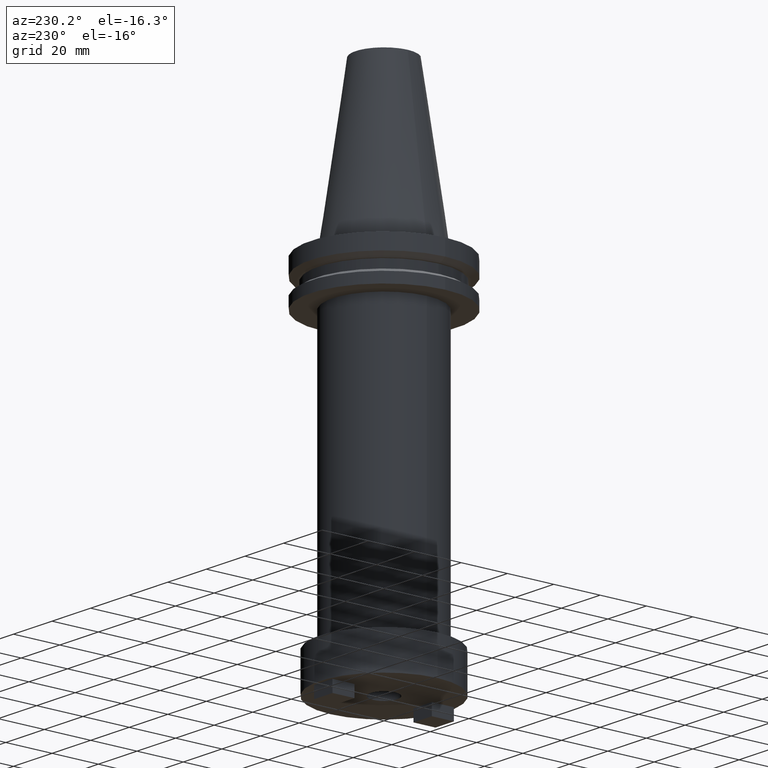
[diagram: clean part render]
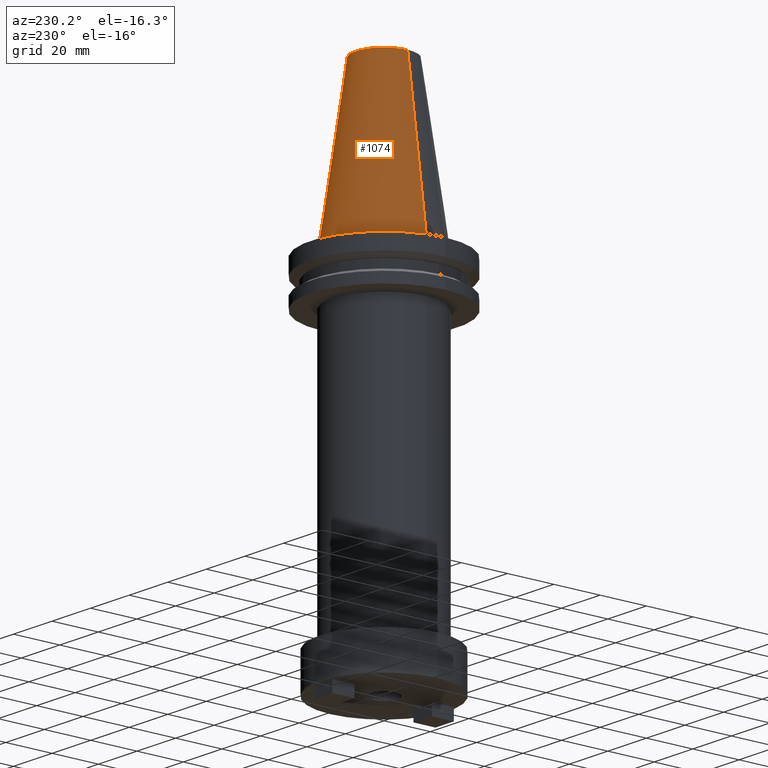
[diagram: same view with one face highlighted and labeled with its STEP entity id]
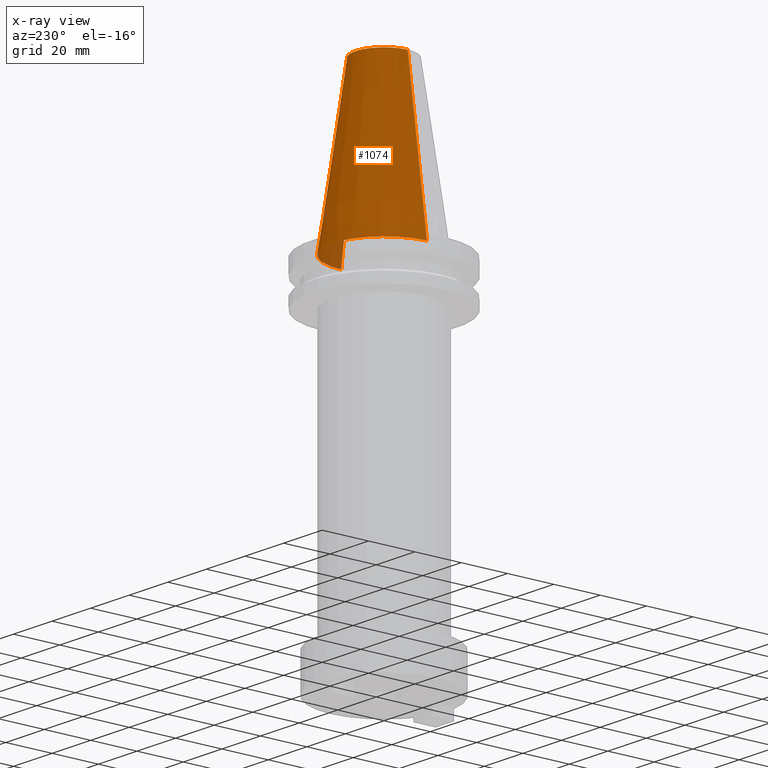
[diagram: x-ray of the same camera — body ghosted, the highlighted face saturated]
A machine part, auxiliary view. The second image highlights one B-rep face of the part: STEP entity #1074.
The next image is the same camera in x-ray: the body ghosted, the highlighted face saturated — about 3% of this face is hidden behind the body in this view.
In plain terms, the highlighted conical surface has half-angle 8.297 deg.
Its self-contained STEP definition (entity closure, byte-faithful):
#10 = AXIS2_PLACEMENT_3D ( 'NONE', #611, #628, #867 ) ;
#14 = CARTESIAN_POINT ( 'NONE',  ( 12.27178102086201150, 2.112318622904291439E-15, 68.25000000000000000 ) ) ;
#35 = VERTEX_POINT ( 'NONE', #163 ) ;
#51 = CARTESIAN_POINT ( 'NONE',  ( 0.000000000000000000, 0.000000000000000000, 0.000000000000000000 ) ) ;
#123 = ORIENTED_EDGE ( 'NONE', *, *, #1001, .F. ) ;
#130 = CARTESIAN_POINT ( 'NONE',  ( -22.22500000000000142, 0.000000000000000000, 0.000000000000000000 ) ) ;
#163 = CARTESIAN_POINT ( 'NONE',  ( -12.27178102086201150, 0.000000000000000000, 68.25000000000000000 ) ) ;
#211 = ORIENTED_EDGE ( 'NONE', *, *, #342, .T. ) ;
#212 = CIRCLE ( 'NONE', #600, 22.22500000000000142 ) ;
#233 = EDGE_CURVE ( 'NONE', #302, #894, #1041, .T. ) ;
#259 = VECTOR ( 'NONE', #814, 999.9999999999998863 ) ;
#274 = FACE_OUTER_BOUND ( 'NONE', #549, .T. ) ;
#302 = VERTEX_POINT ( 'NONE', #14 ) ;
#319 = VERTEX_POINT ( 'NONE', #1055 ) ;
#342 = EDGE_CURVE ( 'NONE', #894, #319, #212, .T. ) ;
#549 = EDGE_LOOP ( 'NONE', ( #123, #675, #211, #1043 ) ) ;
#600 = AXIS2_PLACEMENT_3D ( 'NONE', #51, #993, #830 ) ;
#611 = CARTESIAN_POINT ( 'NONE',  ( 0.000000000000000000, 0.000000000000000000, 68.25000000000000000 ) ) ;
#612 = DIRECTION ( 'NONE',  ( 0.1443082272672999711, 1.767266086135276757E-17, -0.9895327864921755756 ) ) ;
#616 = CARTESIAN_POINT ( 'NONE',  ( 0.000000000000000000, 0.000000000000000000, 0.000000000000000000 ) ) ;
#625 = CONICAL_SURFACE ( 'NONE', #1063, 22.22500000000000142, 0.1448138465474119174 ) ;
#628 = DIRECTION ( 'NONE',  ( -0.000000000000000000, -0.000000000000000000, 1.000000000000000000 ) ) ;
#675 = ORIENTED_EDGE ( 'NONE', *, *, #233, .T. ) ;
#683 = CIRCLE ( 'NONE', #10, 12.27178102086201150 ) ;
#708 = VECTOR ( 'NONE', #612, 999.9999999999998863 ) ;
#713 = DIRECTION ( 'NONE',  ( 0.000000000000000000, 0.000000000000000000, -1.000000000000000000 ) ) ;
#814 = DIRECTION ( 'NONE',  ( -0.1443082272672999711, 0.000000000000000000, -0.9895327864921755756 ) ) ;
#830 = DIRECTION ( 'NONE',  ( 1.000000000000000000, 0.000000000000000000, 0.000000000000000000 ) ) ;
#850 = EDGE_CURVE ( 'NONE', #35, #319, #984, .T. ) ;
#867 = DIRECTION ( 'NONE',  ( 1.000000000000000000, 0.000000000000000000, 0.000000000000000000 ) ) ;
#873 = CARTESIAN_POINT ( 'NONE',  ( 22.22500000000000142, 2.721777511104992849E-15, 0.000000000000000000 ) ) ;
#894 = VERTEX_POINT ( 'NONE', #1070 ) ;
#984 = LINE ( 'NONE', #130, #259 ) ;
#993 = DIRECTION ( 'NONE',  ( -0.000000000000000000, -0.000000000000000000, 1.000000000000000000 ) ) ;
#1001 = EDGE_CURVE ( 'NONE', #302, #35, #683, .T. ) ;
#1041 = LINE ( 'NONE', #873, #708 ) ;
#1043 = ORIENTED_EDGE ( 'NONE', *, *, #850, .F. ) ;
#1047 = DIRECTION ( 'NONE',  ( -1.000000000000000000, 0.000000000000000000, 0.000000000000000000 ) ) ;
#1055 = CARTESIAN_POINT ( 'NONE',  ( -22.22500000000000142, 0.000000000000000000, 0.000000000000000000 ) ) ;
#1063 = AXIS2_PLACEMENT_3D ( 'NONE', #616, #713, #1047 ) ;
#1070 = CARTESIAN_POINT ( 'NONE',  ( 22.22500000000000142, 2.721777511104992849E-15, 0.000000000000000000 ) ) ;
#1074 = ADVANCED_FACE ( 'NONE', ( #274 ), #625, .T. ) ;